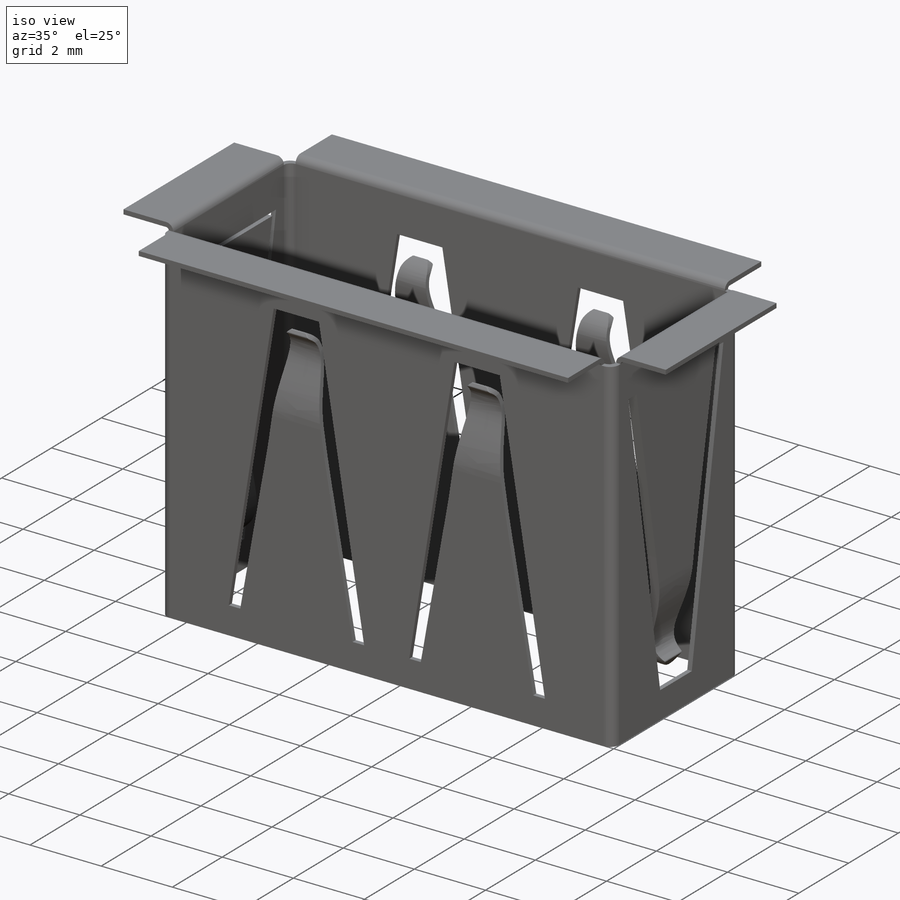
[diagram: iso view]
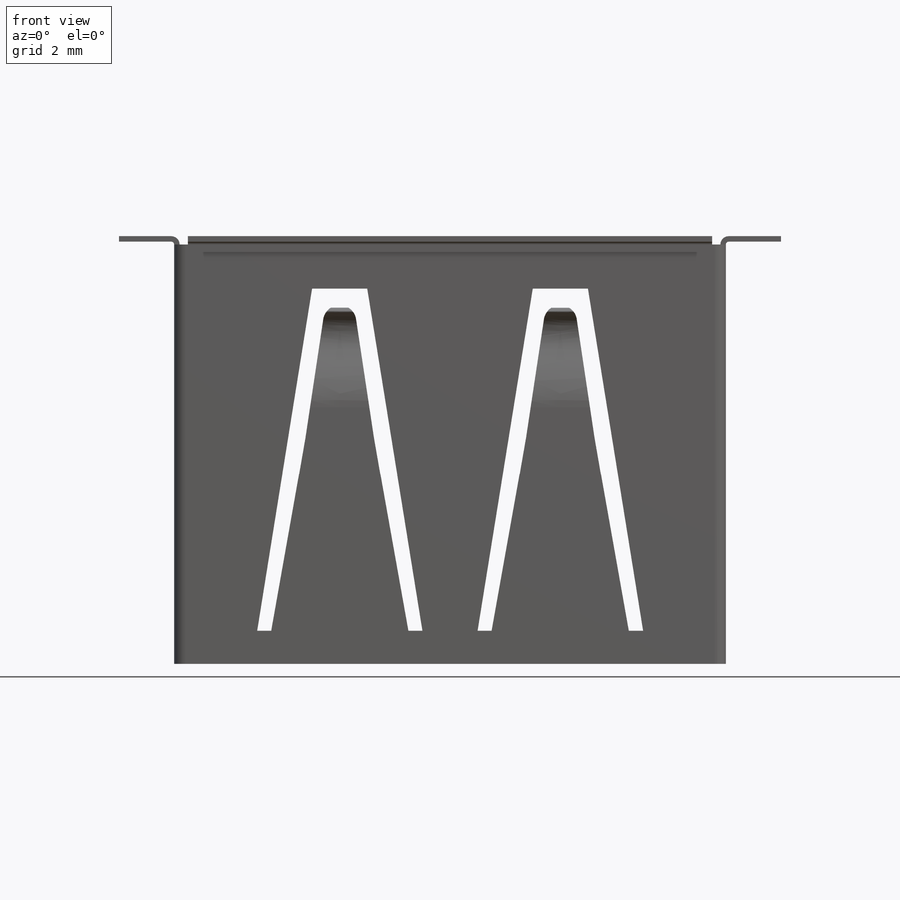
[diagram: front view]
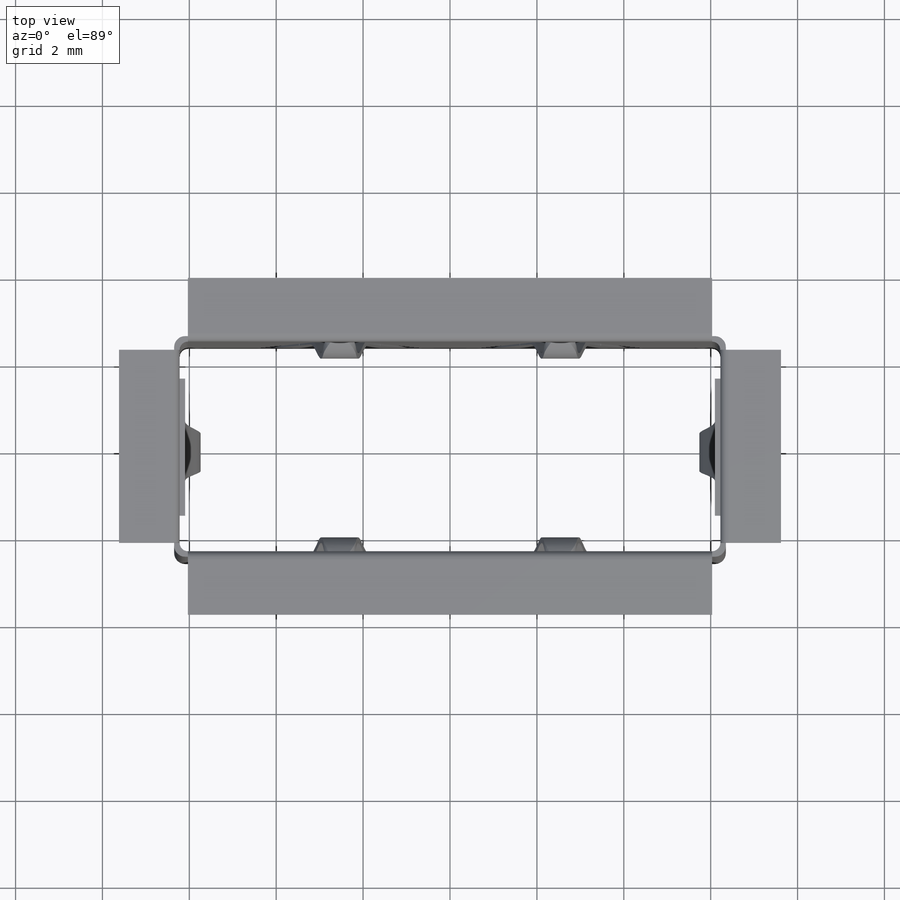
[diagram: top view]
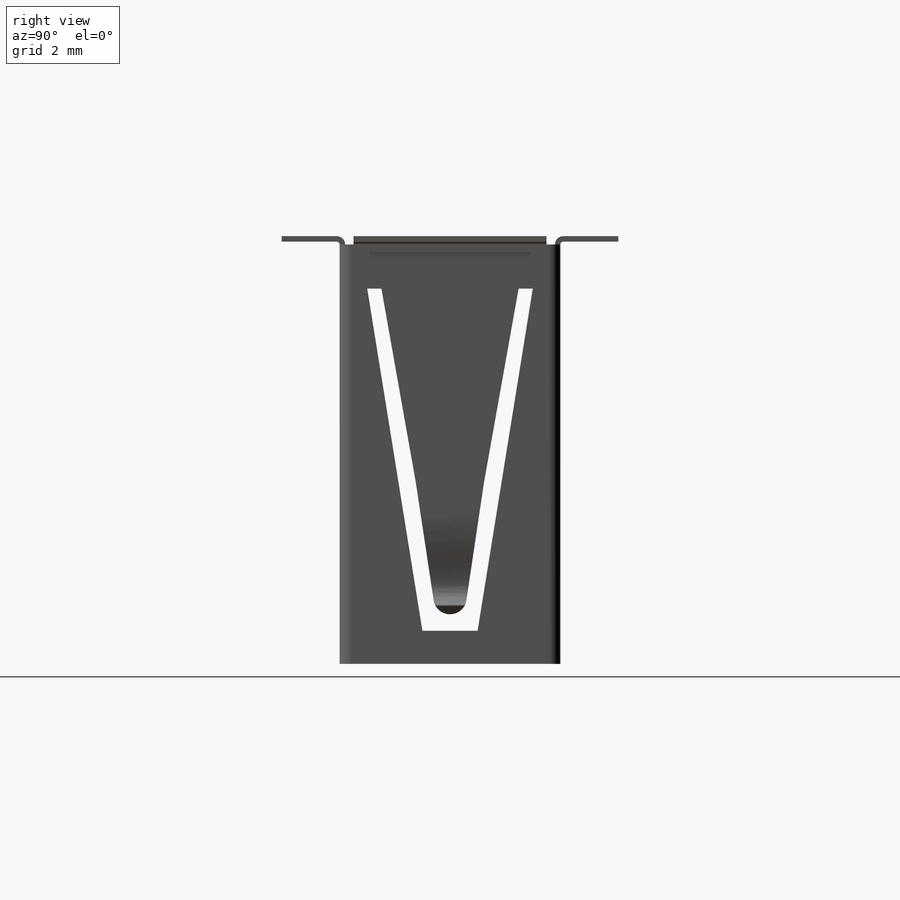
[diagram: right view]
SOLIDWORKS PART (.sldprt)
format: sldprt  version: not decoded by parser v0  size: 975,360 bytes
history: native  units: mm
features: sketch x20, plane x10, cut_extrude x9, mirror x5, sweep x4, extrude x3, fillet x2, material x1 (+13 scaffold rows collapsed)
feature tree (67):
  scaffold x13  (default folders/planes/origin — collapsed)
  material  "Material <not specified>"
  sketch  "Sketch1"  dims[D3=~0.253478mm D1=12.7mm D2=5.08mm]
  extrude  "Boss-Extrude1"  Depth=9.652mm
  sketch  "Sketch7"  dims[D3=0.1905mm D1=0.127mm D2=0.127mm]
  cut_extrude  "Cut-Extrude2"  [1 undecoded]
  sketch  "Sketch8"  dims[c1.D1=3.81mm c1.D2=3.81mm c1.D3=1.905mm c1.D4=1.905mm c1.D5=0.762mm c1.D6=0.762mm c1.D7=7.112mm c1.D8=~7.112257mm c1.D9=3.175mm c1.D10=1.27mm c1.D11=~1.263069mm c1.D12=~2.921522mm c1.D13=~4.191522mm c2.D12=~2.921522mm c2.D13=3.175mm c2.D1=~1.651522mm c2.D2=~2.921522mm c2.D3=~3.556522mm c2.D4=~4.191522mm c2.D5=~5.461522mm c2.D6=~6.731522mm c2.D7=~8.001522mm c2.D8=~8.636522mm c2.D9=~9.271522mm c2.D10=~10.534592mm c2.D11=~10.541522mm c3.D2=~1.651522mm c3.D3=~2.921522mm c3.D4=~3.556522mm c3.D5=~6.731522mm c3.D6=~0.761743mm c3.D7=0.762mm c3.D8=8.636mm c3.D9=8.89mm]
  cut_extrude  "Cut-Extrude3"  [1 undecoded]
  sketch  "Sketch9"  dims[c1.D2=4.445mm c1.D3=~7.054045mm c1.D4=~7.847795mm c1.D5=~9.422688mm c1.D6=~10.212078mm c2.D3=~7.054045mm c2.D4=~9.422688mm c2.D1=0.3175mm]
  extrude  "Boss-Extrude2"  Depth=0.127mm
  plane  "Plane2"
  sketch  "Sketch10"  dims[D1=~2.120545mm D2=~2.240872mm D3=~2.365497mm D4=~1.079395mm D5=~1.807723mm D6=~2.211679mm D7=~2.766044mm D8=~3.329004mm]
  plane  "Plane3"
  sketch  "Sketch11"
  sweep  "Sweep1"
  sketch  "Sketch12"  dims[c1.D1=~0.383249mm c1.D2=7.874mm c1.D3=~3.81014mm c1.D4=~1.720879mm c1.D5=~2.043401mm c1.D6=~0.145183mm c1.D7=~0.457792mm c2.D4=~1.720879mm c2.D5=~1.159547mm c2.D6=~0.413065mm c2.D7=~0.145183mm c2.D8=~0.457792mm c3.D6=~0.413065mm c3.D7=~0.534581mm c3.D8=~1.720079mm c3.D9=~2.098831mm]
  cut_extrude  "Cut-Extrude8"  Depth=0.889mm
  fillet  "Fillet3"  Radius=0.03175mm
  plane  "Plane4"
  sketch  "Sketch14"  dims[D1=~1.998677mm D2=~1.984887mm]
  cut_extrude  "Cut-Extrude9"  Depth=0.889mm
  plane  "Plane5"
  sketch  "Sketch15"  dims[D1=~2.000108mm D2=~2.693919mm]
  cut_extrude  "Cut-Extrude10"  Depth=0.889mm
  mirror  "Mirror1"
  mirror  "Mirror2"
  sketch  "Sketch16"
  plane  "Plane6"
  sketch  "Sketch17"  dims[c1.D3=~0.129431mm c1.D1=0.381mm c1.D2=0.508mm c2.D3=0.508mm c2.D1=0.0mm c2.D2=1.27mm]
  sweep  "Sweep2"
  mirror  "Mirror3"
  sketch  "Sketch18"
  plane  "Plane7"
  sketch  "Sketch19"  dims[D1=~0.129431mm D2=7.62mm D3=0.635mm]
  sweep  "Sweep3"
  mirror  "Mirror4"
  sketch  "Sketch20"  dims[c1.D1=~0.381522mm c1.D2=~1.651522mm c1.D3=~2.286522mm c1.D4=~2.921522mm c1.D5=~4.191522mm c2.D1=~0.381522mm c2.D2=~1.651522mm c2.D3=~2.286522mm c2.D4=~0.733957mm c2.D5=~8.607957mm c2.D6=9.652mm c3.D1=~0.381522mm c3.D2=~1.651522mm c3.D3=~2.286522mm c3.D4=~2.921522mm c3.D5=~4.191522mm c4.D1=~0.381522mm c4.D2=~1.651522mm c4.D3=~2.286522mm c4.D4=0.762mm c4.D5=8.636mm c4.D6=9.652mm]
  cut_extrude  "Cut-Extrude11"  [1 undecoded]
  sketch  "Sketch22"  dims[D1=~0.707504mm D2=~1.496898mm D3=~3.071791mm D4=~3.865541mm D5=4.445mm]
  extrude  "Boss-Extrude3"  Depth=0.254mm
  plane  "Plane8"
  plane  "Plane9"
  sketch  "Sketch24"
  sketch  "Sketch28"  dims[D1=~5.867045mm D2=~5.987372mm D3=~6.111997mm D4=6.223mm D5=0.635mm D6=~1.333395mm D7=~2.061723mm D8=~2.465679mm D9=~3.020044mm D10=~3.583004mm]
  sweep  "Sweep4"
  sketch  "Sketch29"  dims[c1.D1=~0.383249mm c1.D2=~0.151166mm c1.D3=~0.296352mm c1.D4=~0.675103mm c1.D5=~0.261899mm c1.D6=~0.63514mm c1.D7=~1.008381mm c1.D8=1.27mm c1.D9=~1.423728mm c1.D10=~1.569713mm c1.D11=~1.958308mm c1.D12=~2.214019mm c2.D5=~0.261899mm c2.D6=~0.63514mm c2.D7=~3.606489mm c2.D12=~3.665254mm c2.D13=4.445mm c2.D14=7.112mm c2.D15=~7.199012mm c3.D14=7.112mm c3.D2=~1.570003mm c3.D3=~2.214019mm]
  cut_extrude  "Cut-Extrude12"  [1 undecoded]
  fillet  "Fillet4"  Radius=0.03175mm
  plane  "Plane11"
  sketch  "Sketch30"  dims[D1=~5.663935mm D2=~2.674429mm D3=~3.678015mm]
  cut_extrude  "Cut-Extrude13"  Depth=0.254mm
  plane  "Plane12"
  sketch  "Sketch31"  dims[D1=~5.638583mm D2=~2.586134mm]
  cut_extrude  "Cut-Extrude14"  Depth=0.254mm
  mirror  "Mirror5"
decode coverage: 26 of 43 modeling features carry decoded parameters
note: ~ marks probable driven/reference dimensions
note: 4 parameter values undecoded
summary: no parameter record found for 4 features; profile_refs inferred from adjacent sketches, not decoded
note: suppression state not decoded; provenance and decode notes live in map.json
